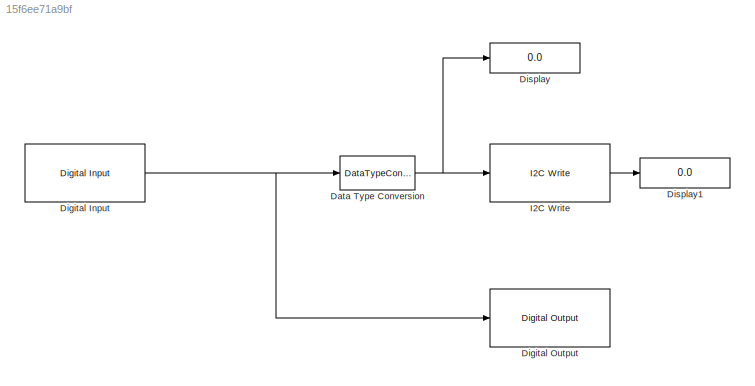
MODEL slx_15f6ee71a9bf
KIND model
CONFIG AbsTol = auto
CONFIG EnableMultiTasking = off
CONFIG FixedStep = auto
CONFIG MaxStep = auto
CONFIG MinStep = auto
CONFIG RelTol = 1e-3
CONFIG SampleTimeConstraint = Unconstrained
CONFIG SolverName = FixedStepAuto
CONFIG StartTime = 0.0
CONFIG StopTime = inf
BLOCK [DataTypeConversion] Data Type Conversion
  OutDataTypeStr = uint8
  RndMeth = Floor
  SaturateOnIntegerOverflow = off
BLOCK [Reference] Digital Input  REF=arduinolib/Digital Input
  Ports = [0, 1]
  SourceBlock = arduinolib/Digital Input
  SourceProductBaseCode = ARDUINO
  SourceType = Arduino Digital Input
BLOCK [Reference] Digital Output  REF=arduinolib/Digital Output
  Ports = [1]
  SourceBlock = arduinolib/Digital Output
  SourceProductBaseCode = ARDUINO
  SourceType = Arduino Digital Output
BLOCK [Display] Display
  Decimation = 1
  Format = binary (Stored Integer)
  Ports = [1]
BLOCK [Display] Display1
  Decimation = 1
  Format = binary (Stored Integer)
  Ports = [1]
BLOCK [Reference] I2C Write  REF=arduinolib/I2C Write
  Ports = [1, 1]
  SourceBlock = arduinolib/I2C Write
  SourceProductBaseCode = ARDUINO
  SourceType = I2C Write
NET Data Type Conversion:1 -> Display:1, I2C Write:1
NET Digital Input:1 -> Data Type Conversion:1, Digital Output:1
LINE I2C Write:1 -> Display1:1
note: NET lines group one-source signal fan-out (src -> all destinations, sorted); 1:1 wires keep LINE
